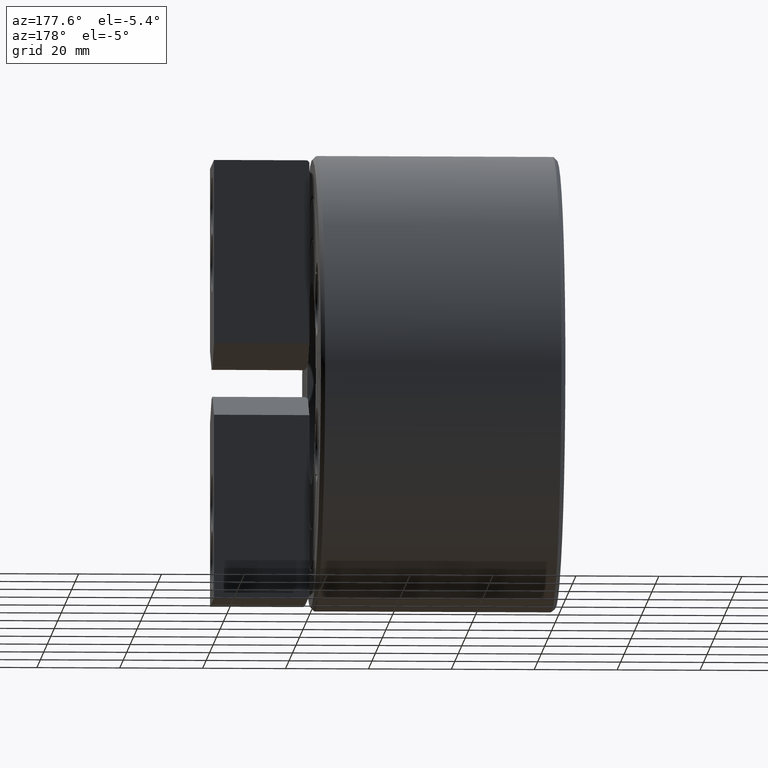
[diagram: clean part render]
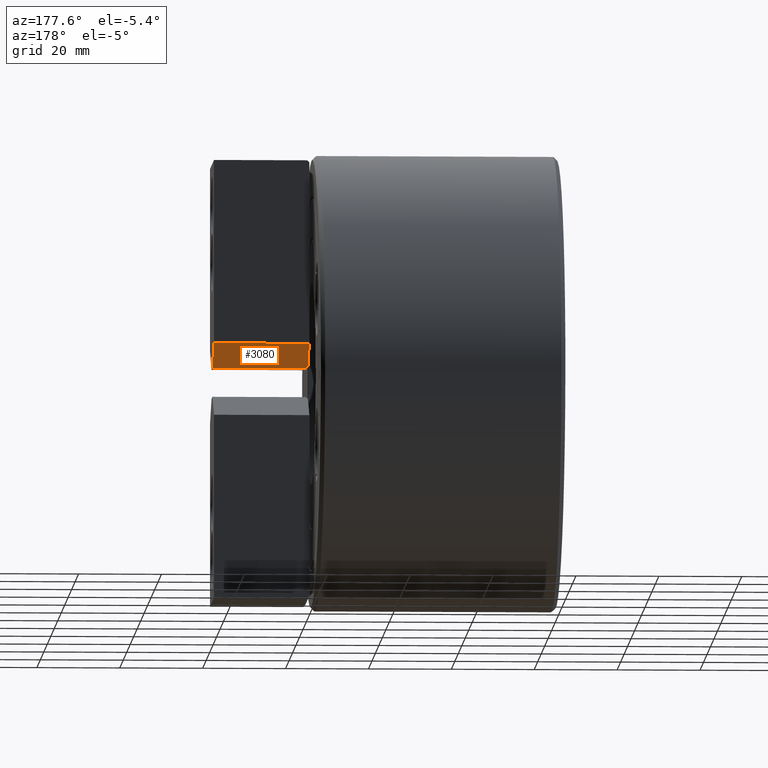
[diagram: same view with one face highlighted and labeled with its STEP entity id]
A machine part, auxiliary view. The second image highlights one B-rep face of the part: STEP entity #3080.
In plain terms, the highlighted planar face has unit normal (0, -0.5, 0.866).
Its self-contained STEP definition (entity closure, byte-faithful):
#123=LINE('',#5623,#376);
#128=LINE('',#5637,#381);
#131=LINE('',#5643,#384);
#134=LINE('',#5649,#387);
#141=LINE('',#5662,#394);
#376=VECTOR('',#4753,1000.);
#381=VECTOR('',#4764,1000.);
#384=VECTOR('',#4769,1000.);
#387=VECTOR('',#4774,1000.);
#394=VECTOR('',#4785,1000.);
#650=PLANE('',#4389);
#846=ORIENTED_EDGE('',*,*,#1668,.T.);
#847=ORIENTED_EDGE('',*,*,#1671,.F.);
#848=ORIENTED_EDGE('',*,*,#1678,.F.);
#849=ORIENTED_EDGE('',*,*,#1658,.T.);
#850=ORIENTED_EDGE('',*,*,#1665,.F.);
#1658=EDGE_CURVE('',#2089,#2090,#123,.T.);
#1665=EDGE_CURVE('',#2095,#2090,#128,.T.);
#1668=EDGE_CURVE('',#2095,#2097,#131,.T.);
#1671=EDGE_CURVE('',#2099,#2097,#134,.T.);
#1678=EDGE_CURVE('',#2089,#2099,#141,.T.);
#2089=VERTEX_POINT('',#5624);
#2090=VERTEX_POINT('',#5625);
#2095=VERTEX_POINT('',#5638);
#2097=VERTEX_POINT('',#5644);
#2099=VERTEX_POINT('',#5650);
#2535=EDGE_LOOP('',(#846,#847,#848,#849,#850));
#2792=FACE_BOUND('',#2535,.T.);
#3080=ADVANCED_FACE('',(#2792),#650,.F.);
#4389=AXIS2_PLACEMENT_3D('',#5664,#4787,#4788);
#4753=DIRECTION('',(0.,-0.866025403784439,-0.5));
#4764=DIRECTION('',(1.,0.,0.));
#4769=DIRECTION('',(-0.447213595499958,0.774596669241483,0.447213595499958));
#4774=DIRECTION('',(0.,-0.866025403784439,-0.5));
#4785=DIRECTION('',(-1.,0.,0.));
#4787=DIRECTION('',(0.,-0.5,0.866025403784439));
#4788=DIRECTION('',(0.,-0.866025403784439,-0.5));
#5623=CARTESIAN_POINT('',(22.7737654320987,2.5,3.5));
#5624=CARTESIAN_POINT('',(22.7737654320987,11.5,8.69615242270662));
#5625=CARTESIAN_POINT('',(22.7737654320987,2.5,3.5));
#5637=CARTESIAN_POINT('',(-0.226234567901239,2.5,3.5));
#5638=CARTESIAN_POINT('',(0.273765432098751,2.5,3.5));
#5643=CARTESIAN_POINT('',(5.12350769329161,-5.9,-1.34974226119287));
#5644=CARTESIAN_POINT('',(-0.226234567901239,3.36602540378444,4.));
#5649=CARTESIAN_POINT('',(-0.226234567901239,2.5,3.5));
#5650=CARTESIAN_POINT('',(-0.226234567901239,11.5,8.69615242270662));
#5662=CARTESIAN_POINT('',(-24.4762345679013,11.5,8.69615242270662));
#5664=CARTESIAN_POINT('',(-0.226234567901239,2.5,3.5));